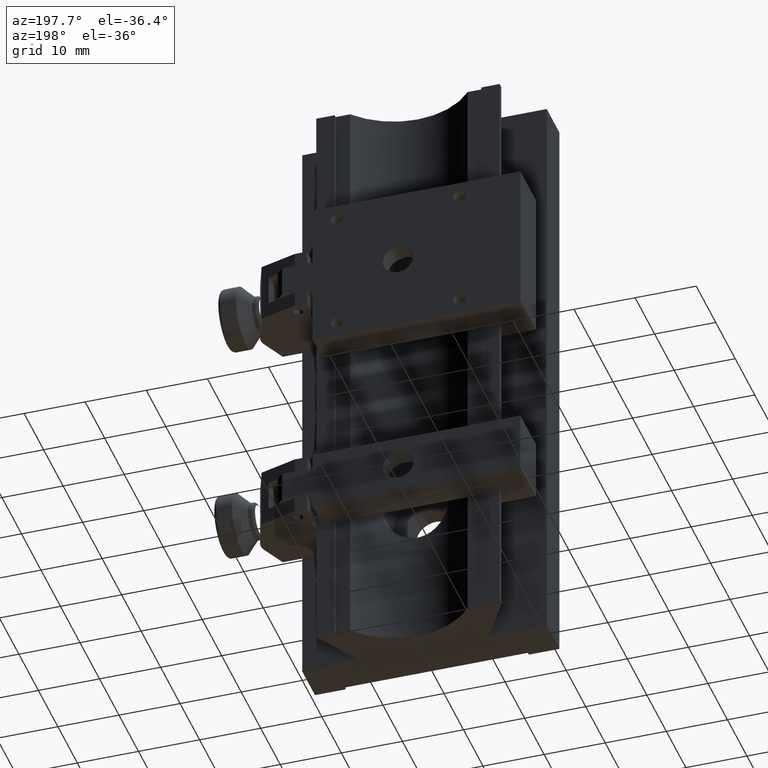
[diagram: clean part render]
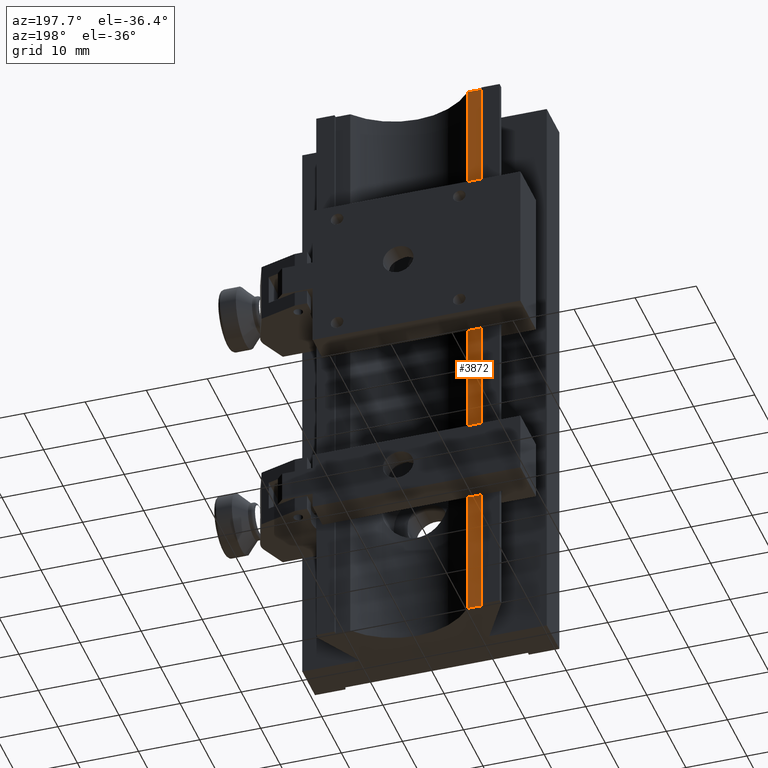
[diagram: same view with one face highlighted and labeled with its STEP entity id]
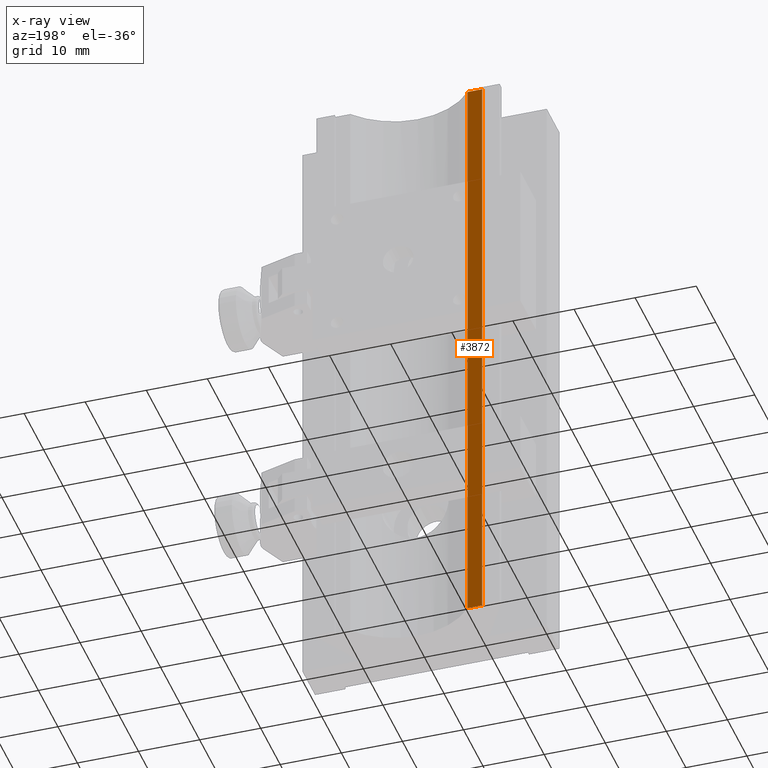
[diagram: x-ray of the same camera — body ghosted, the highlighted face saturated]
A machine part, auxiliary view. The second image highlights one B-rep face of the part: STEP entity #3872.
The next image is the same camera in x-ray: the body ghosted, the highlighted face saturated — about 0% of this face is hidden behind the body in this view.
In plain terms, the highlighted planar face has unit normal (-0, 1, 0).
Its self-contained STEP definition (entity closure, byte-faithful):
#63 = ORIENTED_EDGE ( 'NONE', *, *, #1646, .T. ) ;
#278 = EDGE_CURVE ( 'NONE', #648, #3293, #937, .T. ) ;
#299 = EDGE_CURVE ( 'NONE', #648, #2135, #4225, .T. ) ;
#616 = VECTOR ( 'NONE', #776, 1000.000000000000000 ) ;
#648 = VERTEX_POINT ( 'NONE', #809 ) ;
#776 = DIRECTION ( 'NONE',  ( -1.000000000000000000, -1.445602896647339163E-16, 0.000000000000000000 ) ) ;
#809 = CARTESIAN_POINT ( 'NONE',  ( -9.604686356149272797, 7.999999999999998224, 50.00000000000000000 ) ) ;
#852 = DIRECTION ( 'NONE',  ( -0.000000000000000000, 0.000000000000000000, -1.000000000000000000 ) ) ;
#889 = LINE ( 'NONE', #2538, #616 ) ;
#908 = DIRECTION ( 'NONE',  ( -1.000000000000000000, -1.445602896647339163E-16, 0.000000000000000000 ) ) ;
#937 = LINE ( 'NONE', #4535, #5131 ) ;
#1000 = EDGE_LOOP ( 'NONE', ( #3963, #2439, #63, #3485 ) ) ;
#1297 = PLANE ( 'NONE',  #2264 ) ;
#1633 = CARTESIAN_POINT ( 'NONE',  ( 9.157674552523589243E-16, 8.000000000000000000, 50.00000000000000000 ) ) ;
#1646 = EDGE_CURVE ( 'NONE', #1833, #2135, #4595, .T. ) ;
#1833 = VERTEX_POINT ( 'NONE', #2297 ) ;
#2055 = CARTESIAN_POINT ( 'NONE',  ( -11.99999999999997158, 7.999999999999998224, 283.9794224532299154 ) ) ;
#2135 = VERTEX_POINT ( 'NONE', #3896 ) ;
#2264 = AXIS2_PLACEMENT_3D ( 'NONE', #4972, #3333, #3279 ) ;
#2297 = CARTESIAN_POINT ( 'NONE',  ( -12.00000000000001243, 7.999999999999998224, -49.99999999999998579 ) ) ;
#2439 = ORIENTED_EDGE ( 'NONE', *, *, #3891, .T. ) ;
#2538 = CARTESIAN_POINT ( 'NONE',  ( 9.157674552523589243E-16, 8.000000000000000000, -50.00000000000000000 ) ) ;
#2567 = VECTOR ( 'NONE', #908, 1000.000000000000000 ) ;
#2881 = FACE_OUTER_BOUND ( 'NONE', #1000, .T. ) ;
#3279 = DIRECTION ( 'NONE',  ( -1.000000000000000000, -1.445602896647339163E-16, 0.000000000000000000 ) ) ;
#3293 = VERTEX_POINT ( 'NONE', #4022 ) ;
#3333 = DIRECTION ( 'NONE',  ( -1.445602896647339163E-16, 1.000000000000000000, 1.766128869543160699E-32 ) ) ;
#3485 = ORIENTED_EDGE ( 'NONE', *, *, #299, .F. ) ;
#3872 = ADVANCED_FACE ( 'NONE', ( #2881 ), #1297, .T. ) ;
#3891 = EDGE_CURVE ( 'NONE', #3293, #1833, #889, .T. ) ;
#3896 = CARTESIAN_POINT ( 'NONE',  ( -11.99999999999999822, 7.999999999999998224, 49.99999999999998579 ) ) ;
#3963 = ORIENTED_EDGE ( 'NONE', *, *, #278, .T. ) ;
#4022 = CARTESIAN_POINT ( 'NONE',  ( -9.604686356149272797, 7.999999999999998224, -50.00000000000000000 ) ) ;
#4225 = LINE ( 'NONE', #1633, #2567 ) ;
#4535 = CARTESIAN_POINT ( 'NONE',  ( -9.604686356149272797, 7.999999999999998224, 50.00000000000000000 ) ) ;
#4595 = LINE ( 'NONE', #2055, #5031 ) ;
#4972 = CARTESIAN_POINT ( 'NONE',  ( -1.123668541772420414E-15, 8.000000000000000000, 1.501209539111686635E-31 ) ) ;
#5031 = VECTOR ( 'NONE', #5297, 1000.000000000000000 ) ;
#5131 = VECTOR ( 'NONE', #852, 1000.000000000000000 ) ;
#5297 = DIRECTION ( 'NONE',  ( 1.221724772161974472E-16, 0.000000000000000000, 1.000000000000000000 ) ) ;